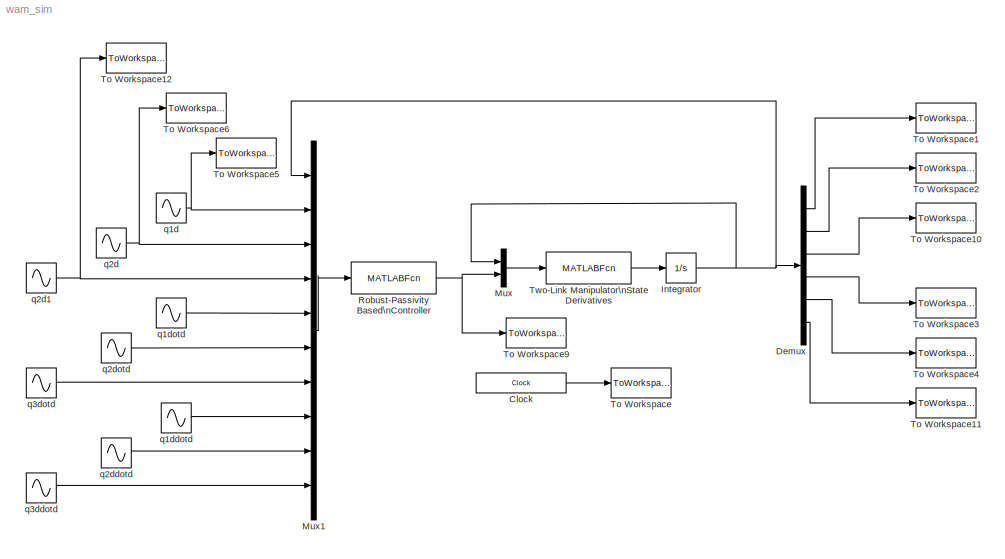
MODEL wam_sim
KIND model
BLOCK [Clock] Clock
  DisplayTime = on
  SID = 1
BLOCK [Demux] Demux
  DisplayOption = bar
  Outputs = 6
  Ports = [1, 6]
  SID = 2
BLOCK [Integrator] Integrator
  InitialCondition = Z0
  Ports = [1, 1]
  SID = 4
BLOCK [Mux] Mux
  DisplayOption = bar
  Inputs = 2
  Ports = [2, 1]
  SID = 5
BLOCK [Mux] Mux1
  DisplayOption = bar
  Inputs = 10
  Ports = [10, 1]
  SID = 6
BLOCK [MATLABFcn] Robust-Passivity Based\nController
  MATLABFcn = robust_passivity(0,u(1:6),u(7:15))
  OutputDimensions = 3
  Ports = [1, 1]
  SID = 8
BLOCK [ToWorkspace] To Workspace
  MaxDataPoints = inf
  Ports = [1]
  SID = 9
  SampleTime = -1
  VariableName = t
BLOCK [ToWorkspace] To Workspace1
  MaxDataPoints = inf
  Ports = [1]
  SID = 10
  SampleTime = -1
  VariableName = q1
BLOCK [ToWorkspace] To Workspace10
  MaxDataPoints = inf
  Ports = [1]
  SID = 27
  SampleTime = -1
  VariableName = q3
BLOCK [ToWorkspace] To Workspace11
  MaxDataPoints = inf
  Ports = [1]
  SID = 28
  SampleTime = -1
  VariableName = qdot3
BLOCK [ToWorkspace] To Workspace12
  MaxDataPoints = inf
  Ports = [1]
  SID = 30
  SampleTime = -1
  VariableName = q3d
BLOCK [ToWorkspace] To Workspace2
  MaxDataPoints = inf
  Ports = [1]
  SID = 11
  SampleTime = -1
  VariableName = q2
BLOCK [ToWorkspace] To Workspace3
  MaxDataPoints = inf
  Ports = [1]
  SID = 12
  SampleTime = -1
  VariableName = qdot1
BLOCK [ToWorkspace] To Workspace4
  MaxDataPoints = inf
  Ports = [1]
  SID = 13
  SampleTime = -1
  VariableName = qdot2
BLOCK [ToWorkspace] To Workspace5
  MaxDataPoints = inf
  Ports = [1]
  SID = 14
  SampleTime = -1
  VariableName = q1d
BLOCK [ToWorkspace] To Workspace6
  MaxDataPoints = inf
  Ports = [1]
  SID = 15
  SampleTime = -1
  VariableName = q2d
BLOCK [ToWorkspace] To Workspace9
  MaxDataPoints = inf
  Ports = [1]
  SID = 26
  SampleTime = -1
  VariableName = u
BLOCK [MATLABFcn] Two-Link Manipulator\nState Derivatives
  MATLABFcn = stateder(0,u(1:6),u(7:9))
  OutputDimensions = 6
  Ports = [1, 1]
  SID = 19
BLOCK [Sin] q1d
  Ports = [0, 1]
  SID = 20
  SampleTime = 0
BLOCK [Sin] q1ddotd
  Phase = pi
  Ports = [0, 1]
  SID = 21
  SampleTime = 0
BLOCK [Sin] q1dotd
  Phase = pi/2
  Ports = [0, 1]
  SID = 22
  SampleTime = 0
BLOCK [Sin] q2d
  Bias = -0.5
  Ports = [0, 1]
  SID = 23
  SampleTime = 0
BLOCK [Sin] q2d1
  Amplitude = 0.75
  Ports = [0, 1]
  SID = 29
  SampleTime = 0
BLOCK [Sin] q2ddotd
  Phase = pi
  Ports = [0, 1]
  SID = 24
  SampleTime = 0
BLOCK [Sin] q2dotd
  Phase = pi/2
  Ports = [0, 1]
  SID = 25
  SampleTime = 0
BLOCK [Sin] q3ddotd
  Amplitude = 0.75
  Phase = pi
  Ports = [0, 1]
  SID = 32
  SampleTime = 0
BLOCK [Sin] q3dotd
  Amplitude = 0.75
  Phase = pi/2
  Ports = [0, 1]
  SID = 31
  SampleTime = 0
LINE Clock:1 -> To Workspace:1
LINE Demux:1 -> To Workspace1:1
LINE Demux:2 -> To Workspace2:1
LINE Demux:3 -> To Workspace10:1
LINE Demux:4 -> To Workspace3:1
LINE Demux:5 -> To Workspace4:1
LINE Demux:6 -> To Workspace11:1
NET Integrator:1 -> Demux:1, Mux1:1, Mux:1
LINE Mux1:1 -> Robust-Passivity Based\nController:1
LINE Mux:1 -> Two-Link Manipulator\nState Derivatives:1
NET Robust-Passivity Based\nController:1 -> Mux:2, To Workspace9:1
LINE Two-Link Manipulator\nState Derivatives:1 -> Integrator:1
NET q1d:1 -> Mux1:2, To Workspace5:1
LINE q1ddotd:1 -> Mux1:8
LINE q1dotd:1 -> Mux1:5
NET q2d1:1 -> Mux1:4, To Workspace12:1
NET q2d:1 -> Mux1:3, To Workspace6:1
LINE q2ddotd:1 -> Mux1:9
LINE q2dotd:1 -> Mux1:6
LINE q3ddotd:1 -> Mux1:10
LINE q3dotd:1 -> Mux1:7
note: NET lines group one-source signal fan-out (src -> all destinations, sorted); 1:1 wires keep LINE
